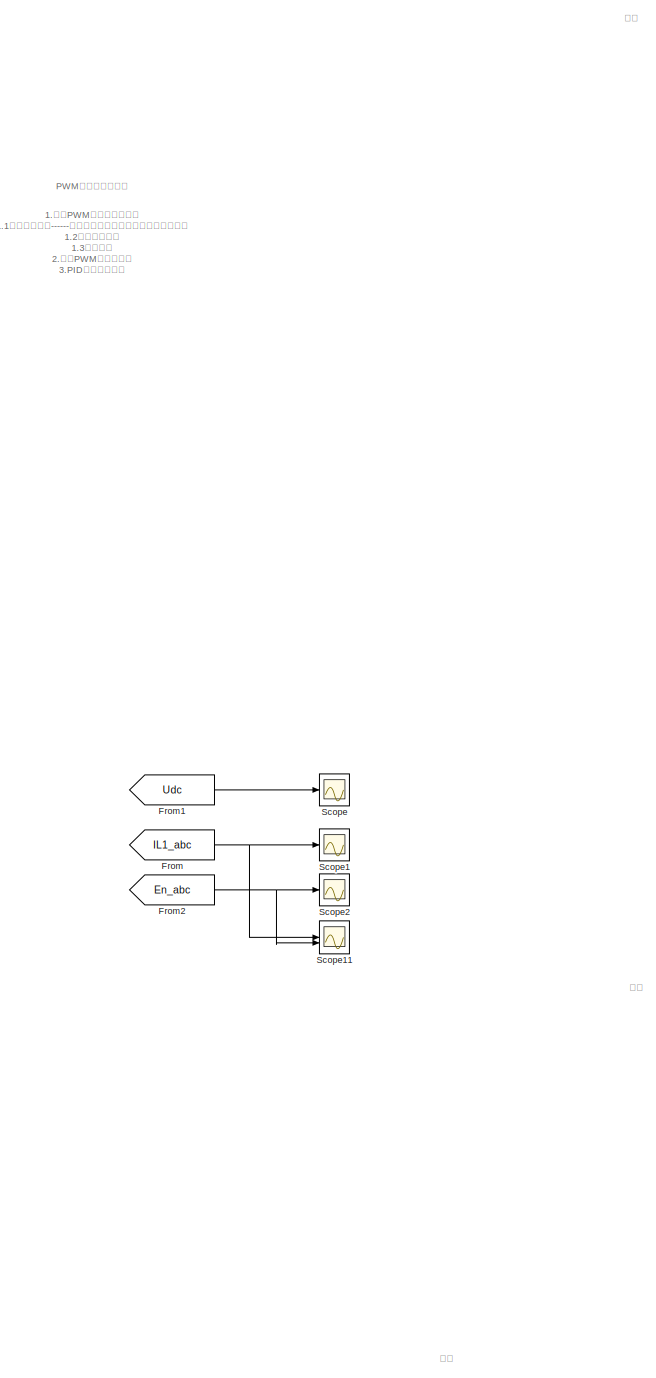
[diagram: root canvas - part 1/9, top left region]
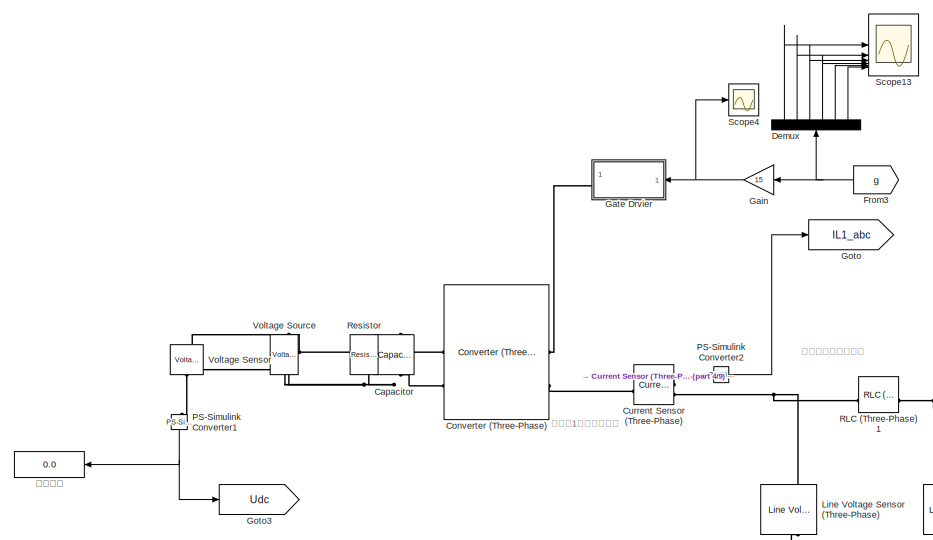
[diagram: root canvas - part 2/9, top center region]
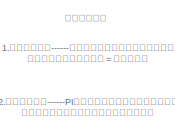
[diagram: root canvas - part 3/9, top right region]
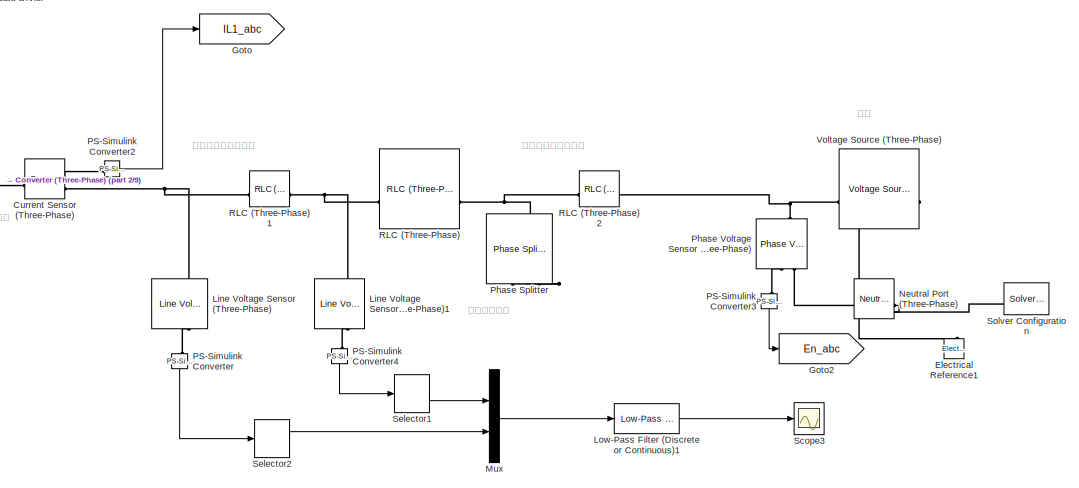
[diagram: root canvas - part 4/9, top center region]
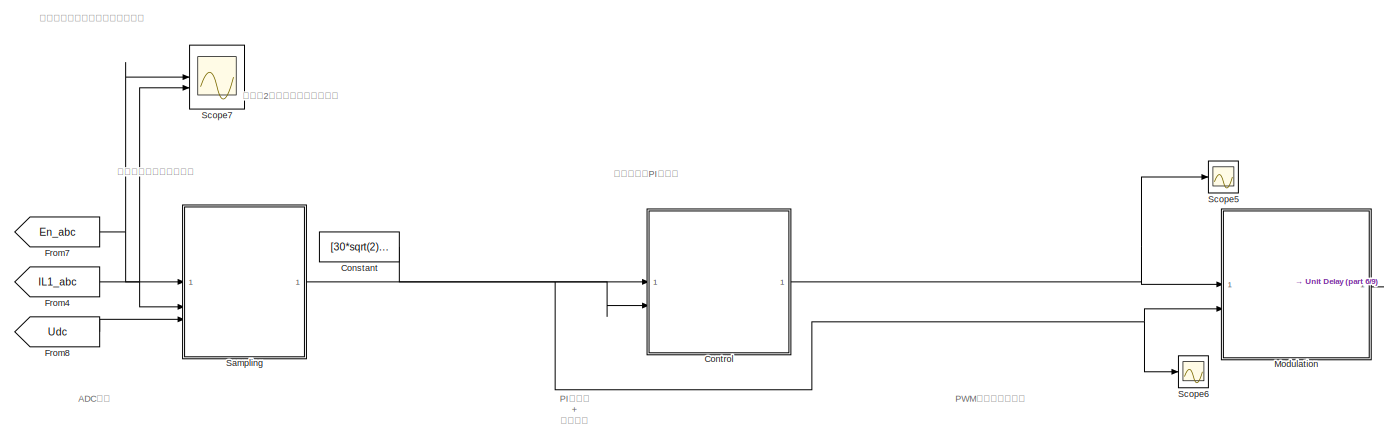
[diagram: root canvas - part 5/9, central region]
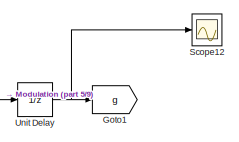
[diagram: root canvas - part 6/9, middle right region]
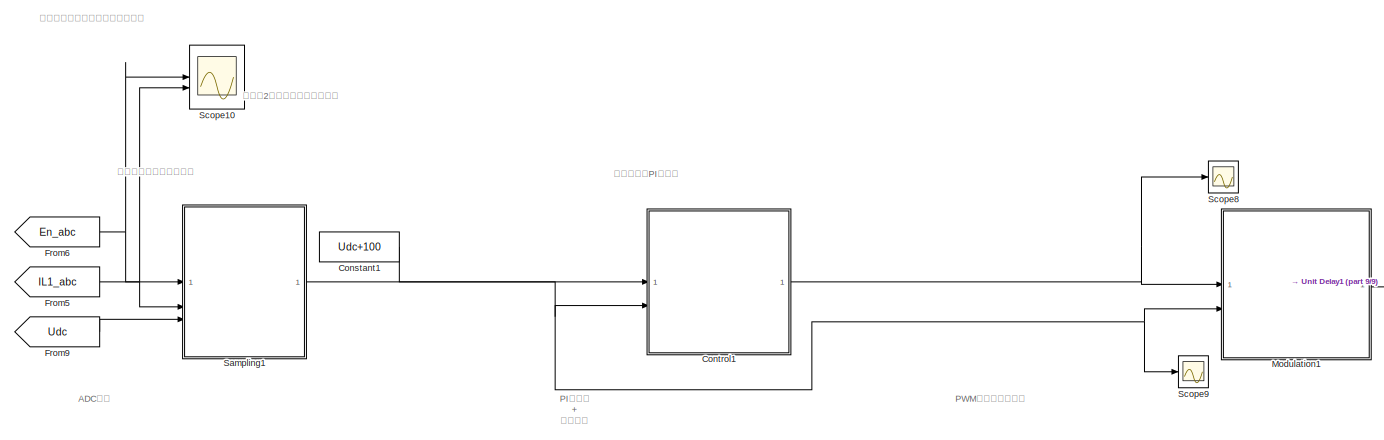
[diagram: root canvas - part 7/9, bottom center region]
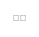
[diagram: root canvas - part 8/9, bottom left region]
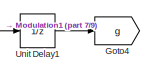
[diagram: root canvas - part 9/9, bottom right region]
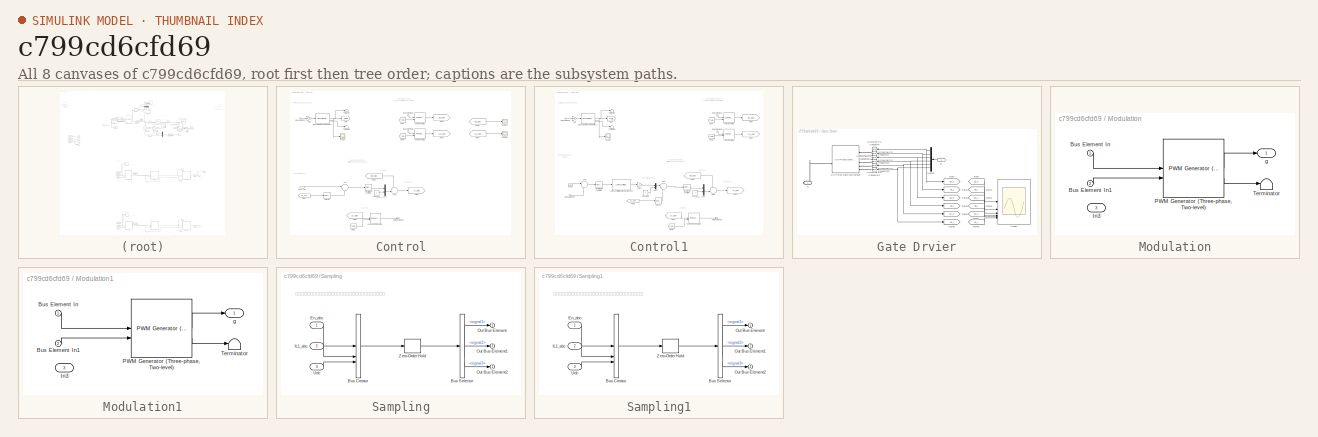
[diagram: thumbnail index - all 8 canvases of the model, root first then tree order]
MODEL slx_c799cd6cfd69
KIND model
CONFIG AbsTol = 1e-3
CONFIG EnableMultiTasking = off
CONFIG FixedStep = SampleTime
CONFIG InitFcn = SampleTime = 1e-6;\n\nPn = 20e3;\nEn = 400;\nUdc = 800;\nf0 = 50;\n\nL1 = 2e-3;\nCdc = 2000e-6;\nRdc = 32;\nfsw = 10e3;\nTc = 1/fsw;\n\nCurr_Kp = 4.43612657703582;\nCurr_Ki = 2045.91501898325;\n\nVolt_Kp = 2.1671;\nVolt_Ki = 164.2462;
CONFIG MaxStep = auto
CONFIG MinStep = auto
CONFIG RelTol = 1e-3
CONFIG SampleTimeConstraint = Unconstrained
CONFIG SolverName = FixedStepDiscrete
CONFIG StartTime = 0.0
CONFIG StopTime = 0.1
BLOCK [Reference] Capacitor  REF=fl_lib/Electrical/Electrical Elements/Capacitor
  NameLocation = left
  SourceBlock = fl_lib/Electrical/Electrical Elements/Capacitor
  SourceType = Capacitor
BLOCK [Constant] Constant
  Value = [30*sqrt(2),0]
BLOCK [Constant] Constant1
  Commented = on
  Value = Udc+100
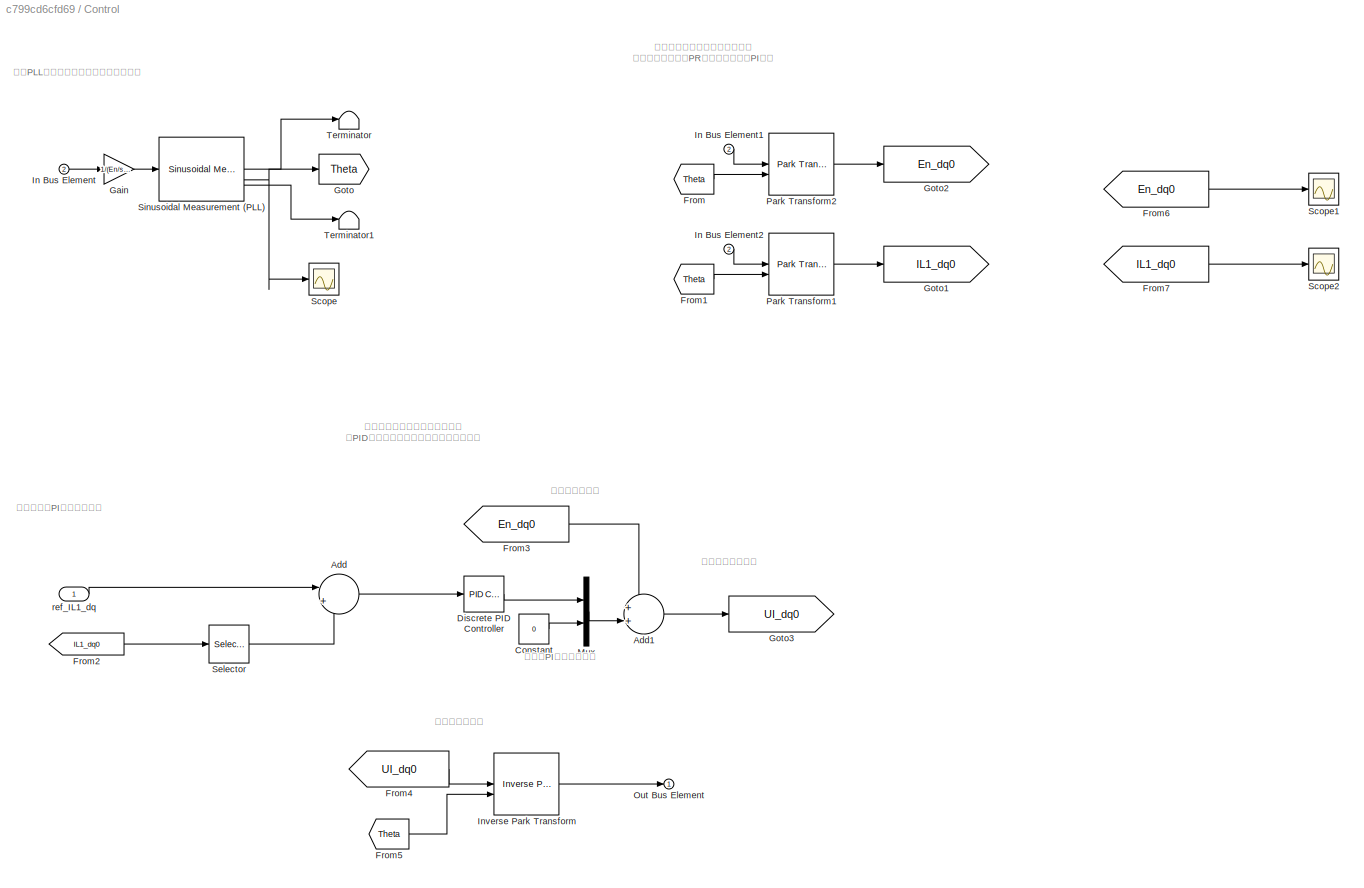
BLOCK [SubSystem] Control
BLOCK [Sum] Control/Add
  Inputs = |+-
BLOCK [Sum] Control/Add1
  Inputs = ++|
BLOCK [Constant] Control/Constant
  Value = 0
BLOCK [Reference] Control/Discrete PID Controller  REF=slpidlib/PID Controller
  LibrarySourceBlock = simulink/Discrete/Discrete PID Controller
  SourceBlock = slpidlib/PID Controller
  SourceType = PID 1dof
BLOCK [From] Control/From
  GotoTag = Theta
BLOCK [From] Control/From1
  GotoTag = Theta
BLOCK [From] Control/From2
  GotoTag = IL1_dq0
  NameLocation = top
BLOCK [From] Control/From3
  GotoTag = En_dq0
  NameLocation = top
BLOCK [From] Control/From4
  GotoTag = UI_dq0
BLOCK [From] Control/From5
  GotoTag = Theta
BLOCK [From] Control/From6
  GotoTag = En_dq0
BLOCK [From] Control/From7
  GotoTag = IL1_dq0
BLOCK [Gain] Control/Gain
  Gain = 1/(En/sqrt(3)*sqrt(2))
BLOCK [Goto] Control/Goto
  GotoTag = Theta
BLOCK [Goto] Control/Goto1
  GotoTag = IL1_dq0
BLOCK [Goto] Control/Goto2
  GotoTag = En_dq0
BLOCK [Goto] Control/Goto3
  GotoTag = UI_dq0
BLOCK [Inport] Control/In Bus Element
  Port = 2
BLOCK [Inport] Control/In Bus Element1
  Port = 2
BLOCK [Inport] Control/In Bus Element2
  Port = 2
BLOCK [Reference] Control/Inverse Park Transform  REF=eeTransforms/Inverse
Park Transform
  LibrarySourceBlock = ee_sl_lib/Mathematical\nTransforms/Inverse\nPark Transform
  SourceBlock = eeTransforms/Inverse\nPark Transform
  SourceType = Inverse Park Transform
BLOCK [Mux] Control/Mux
  DisplayOption = bar
  Inputs = 2
BLOCK [Outport] Control/Out Bus Element
BLOCK [Reference] Control/Park Transform1  REF=eeTransforms/Park Transform
  LibrarySourceBlock = ee_sl_lib/Mathematical\nTransforms/Park Transform
  SourceBlock = eeTransforms/Park Transform
  SourceType = Park Transform
BLOCK [Reference] Control/Park Transform2  REF=eeTransforms/Park Transform
  LibrarySourceBlock = ee_sl_lib/Mathematical\nTransforms/Park Transform
  SourceBlock = eeTransforms/Park Transform
  SourceType = Park Transform
BLOCK [Scope] Control/Scope
  Floating = off
  NumInputPorts = 1
  ScopeSpecificationString = Simulink.scopes.TimeScopeBlockCfg('CurrentConfiguration', extmgr.ConfigurationSet(extmgr.Configuration('Core','General UI',true),extmgr.Configuration('Core','Source UI',true),extmgr.Configuration('Sources','WiredSimulink',true,'DataLoggingVariableName','ScopeData5'),extmgr.Configuration('Visuals','Time Domain',true,'SerializedDisplays',{struct('MinYLimReal','-0.7854','MaxYLimReal','7.06858','YLabe...<+1514ch>
BLOCK [Scope] Control/Scope1
  Floating = off
  NumInputPorts = 1
  ScopeSpecificationString = Simulink.scopes.TimeScopeBlockCfg('CurrentConfiguration', extmgr.ConfigurationSet(extmgr.Configuration('Core','General UI',true),extmgr.Configuration('Core','Source UI',true),extmgr.Configuration('Sources','WiredSimulink',true,'DataLoggingVariableName','ScopeData14'),extmgr.Configuration('Visuals','Time Domain',true,'SerializedDisplays',{struct('MinYLimReal','-40.82483','MaxYLimReal','367.42346','...<+1482ch>
BLOCK [Scope] Control/Scope2
  Floating = off
  NumInputPorts = 1
  ScopeSpecificationString = Simulink.scopes.TimeScopeBlockCfg('CurrentConfiguration', extmgr.ConfigurationSet(extmgr.Configuration('Core','General UI',true),extmgr.Configuration('Core','Source UI',true),extmgr.Configuration('Sources','WiredSimulink',true,'DataLoggingVariableName','ScopeData15'),extmgr.Configuration('Visuals','Time Domain',true,'SerializedDisplays',{struct('MinYLimReal','-31.66382','MaxYLimReal','53.01915','Y...<+1478ch>
BLOCK [Selector] Control/Selector
  IndexOptions = Index vector (dialog)
  Indices = [1 2]
  InputPortWidth = 3
  OutputSizes = 1
BLOCK [Reference] Control/Sinusoidal Measurement (PLL)  REF=eeSinusoidalMeasurementV2/Sinusoidal Measurement
(PLL)
  LibrarySourceBlock = ee_sl_lib/Measurements/Sinusoidal Measurement\n(PLL)
  SourceBlock = eeSinusoidalMeasurementV2/Sinusoidal Measurement\n(PLL)
  SourceType = Sinusoidal Measurement (PLL)
BLOCK [Terminator] Control/Terminator
BLOCK [Terminator] Control/Terminator1
BLOCK [Inport] Control/ref_IL1_dq
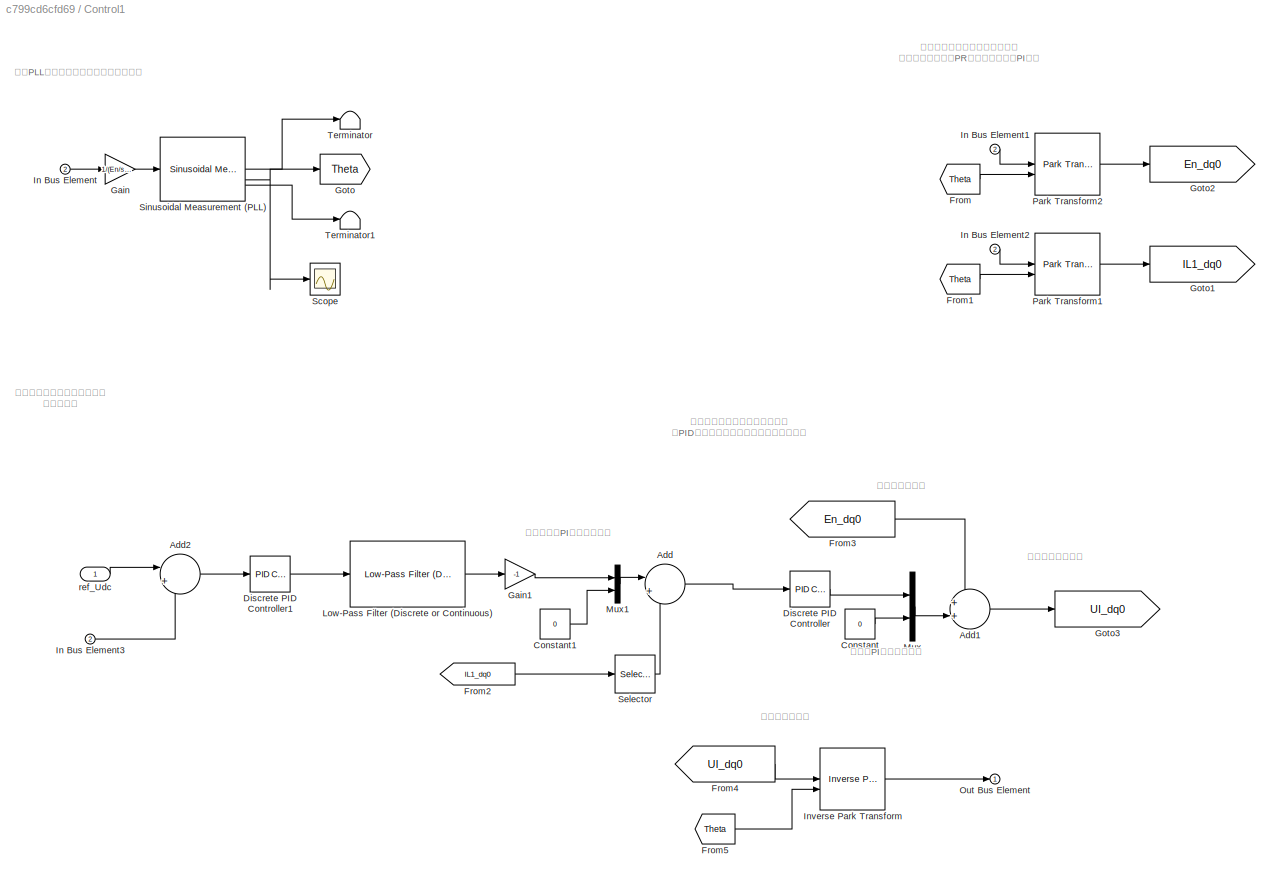
BLOCK [SubSystem] Control1
  Commented = on
BLOCK [Sum] Control1/Add
  Inputs = |+-
BLOCK [Sum] Control1/Add1
  Inputs = ++|
BLOCK [Sum] Control1/Add2
  Inputs = |+-
BLOCK [Constant] Control1/Constant
  Value = 0
BLOCK [Constant] Control1/Constant1
  Value = 0
BLOCK [Reference] Control1/Discrete PID Controller  REF=slpidlib/PID Controller
  LibrarySourceBlock = simulink/Discrete/Discrete PID Controller
  SourceBlock = slpidlib/PID Controller
  SourceType = PID 1dof
BLOCK [Reference] Control1/Discrete PID Controller1  REF=slpidlib/PID Controller
  LibrarySourceBlock = simulink/Discrete/Discrete PID Controller
  SourceBlock = slpidlib/PID Controller
  SourceType = PID 1dof
BLOCK [From] Control1/From
  GotoTag = Theta
BLOCK [From] Control1/From1
  GotoTag = Theta
BLOCK [From] Control1/From2
  GotoTag = IL1_dq0
  NameLocation = top
BLOCK [From] Control1/From3
  GotoTag = En_dq0
  NameLocation = top
BLOCK [From] Control1/From4
  GotoTag = UI_dq0
BLOCK [From] Control1/From5
  GotoTag = Theta
BLOCK [Gain] Control1/Gain
  Gain = 1/(En/sqrt(3)*sqrt(2))
BLOCK [Gain] Control1/Gain1
  Gain = -1
BLOCK [Goto] Control1/Goto
  GotoTag = Theta
BLOCK [Goto] Control1/Goto1
  GotoTag = IL1_dq0
BLOCK [Goto] Control1/Goto2
  GotoTag = En_dq0
BLOCK [Goto] Control1/Goto3
  GotoTag = UI_dq0
BLOCK [Inport] Control1/In Bus Element
  Port = 2
BLOCK [Inport] Control1/In Bus Element1
  Port = 2
BLOCK [Inport] Control1/In Bus Element2
  Port = 2
BLOCK [Inport] Control1/In Bus Element3
  Port = 2
BLOCK [Reference] Control1/Inverse Park Transform  REF=eeTransforms/Inverse
Park Transform
  LibrarySourceBlock = ee_sl_lib/Mathematical\nTransforms/Inverse\nPark Transform
  SourceBlock = eeTransforms/Inverse\nPark Transform
  SourceType = Inverse Park Transform
BLOCK [Reference] Control1/Low-Pass Filter (Discrete or Continuous)  REF=eeGeneralControl/Low-Pass Filter
(Discrete or Continuous)
  LibrarySourceBlock = ee_sl_lib/General Control/Low-Pass Filter\n(Discrete or Continuous)
  SourceBlock = eeGeneralControl/Low-Pass Filter\n(Discrete or Continuous)
  SourceType = Low-Pass Filter (Discrete or Continuous)
BLOCK [Mux] Control1/Mux
  DisplayOption = bar
  Inputs = 2
BLOCK [Mux] Control1/Mux1
  DisplayOption = bar
  Inputs = 2
BLOCK [Outport] Control1/Out Bus Element
BLOCK [Reference] Control1/Park Transform1  REF=eeTransforms/Park Transform
  LibrarySourceBlock = ee_sl_lib/Mathematical\nTransforms/Park Transform
  SourceBlock = eeTransforms/Park Transform
  SourceType = Park Transform
BLOCK [Reference] Control1/Park Transform2  REF=eeTransforms/Park Transform
  LibrarySourceBlock = ee_sl_lib/Mathematical\nTransforms/Park Transform
  SourceBlock = eeTransforms/Park Transform
  SourceType = Park Transform
BLOCK [Scope] Control1/Scope
  Floating = off
  NumInputPorts = 1
  ScopeSpecificationString = Simulink.scopes.TimeScopeBlockCfg('CurrentConfiguration', extmgr.ConfigurationSet(extmgr.Configuration('Core','General UI',true),extmgr.Configuration('Core','Source UI',true),extmgr.Configuration('Sources','WiredSimulink',true,'DataLoggingVariableName','ScopeData5'),extmgr.Configuration('Visuals','Time Domain',true,'SerializedDisplays',{struct('MinYLimReal','-0.7854','MaxYLimReal','7.06858','YLabe...<+1514ch>
BLOCK [Selector] Control1/Selector
  IndexOptions = Index vector (dialog)
  Indices = [1 2]
  InputPortWidth = 3
  OutputSizes = 1
BLOCK [Reference] Control1/Sinusoidal Measurement (PLL)  REF=eeSinusoidalMeasurementV2/Sinusoidal Measurement
(PLL)
  LibrarySourceBlock = ee_sl_lib/Measurements/Sinusoidal Measurement\n(PLL)
  SourceBlock = eeSinusoidalMeasurementV2/Sinusoidal Measurement\n(PLL)
  SourceType = Sinusoidal Measurement (PLL)
BLOCK [Terminator] Control1/Terminator
BLOCK [Terminator] Control1/Terminator1
BLOCK [Inport] Control1/ref_Udc
BLOCK [Reference] Converter (Three-Phase)  REF=ee_lib/Semiconductors &
Converters/Converters/Converter
(Three-Phase)
  SourceBlock = ee_lib/Semiconductors &\nConverters/Converters/Converter\n(Three-Phase)
  SourceType = Converter\n(Three-Phase)
BLOCK [Reference] Current Sensor (Three-Phase)  REF=ee_lib/Sensors &
Transducers/Current Sensor
(Three-Phase)
  SourceBlock = ee_lib/Sensors &\nTransducers/Current Sensor\n(Three-Phase)
  SourceType = Current Sensor\n(Three-Phase)
BLOCK [Demux] Demux
  NameLocation = right
  Outputs = 6
BLOCK [Reference] Electrical Reference1  REF=fl_lib/Electrical/Electrical Elements/Electrical Reference
  LibrarySourceBlock = ee_lib/Connectors &\nReferences/Electrical Reference
  NameLocation = right
  SourceBlock = fl_lib/Electrical/Electrical Elements/Electrical Reference
  SourceType = Electrical Reference
BLOCK [From] From
  GotoTag = IL1_abc
BLOCK [From] From1
  GotoTag = Udc
BLOCK [From] From2
  GotoTag = En_abc
BLOCK [From] From3
  GotoTag = g
  NameLocation = top
BLOCK [From] From4
  GotoTag = IL1_abc
BLOCK [From] From5
  Commented = on
  GotoTag = IL1_abc
BLOCK [From] From6
  Commented = on
  GotoTag = En_abc
BLOCK [From] From7
  GotoTag = En_abc
BLOCK [From] From8
  GotoTag = Udc
BLOCK [From] From9
  Commented = on
  GotoTag = Udc
BLOCK [Gain] Gain
  Gain = 15
  NameLocation = top
BLOCK [SubSystem] Gate Drvier
  NameLocation = top
BLOCK [Demux] Gate Drvier/Demux
  NameLocation = top
  Outputs = 6
BLOCK [From] Gate Drvier/From
  GotoTag = Ga_H
BLOCK [From] Gate Drvier/From1
  GotoTag = Ga_L
BLOCK [From] Gate Drvier/From2
  GotoTag = Gb_H
BLOCK [From] Gate Drvier/From3
  GotoTag = Gb_L
BLOCK [From] Gate Drvier/From4
  GotoTag = Gc_H
BLOCK [From] Gate Drvier/From5
  GotoTag = Gc_L
BLOCK [PMIOPort] Gate Drvier/G
  Side = Right
BLOCK [Goto] Gate Drvier/Goto
  GotoTag = Ga_H
BLOCK [Goto] Gate Drvier/Goto1
  GotoTag = Ga_L
BLOCK [Goto] Gate Drvier/Goto2
  GotoTag = Gb_H
BLOCK [Goto] Gate Drvier/Goto3
  GotoTag = Gb_L
BLOCK [Goto] Gate Drvier/Goto4
  GotoTag = Gc_H
BLOCK [Goto] Gate Drvier/Goto5
  GotoTag = Gc_L
BLOCK [Scope] Gate Drvier/Scope
  Floating = off
  NumInputPorts = 6
  ScopeSpecificationString = Simulink.scopes.TimeScopeBlockCfg('CurrentConfiguration', extmgr.ConfigurationSet(extmgr.Configuration('Core','General UI',true),extmgr.Configuration('Core','Source UI',true),extmgr.Configuration('Sources','WiredSimulink',true,'DataLoggingVariableName','ScopeData13'),extmgr.Configuration('Visuals','Time Domain',true,'SerializedDisplays',{struct('MinYLimReal','-1.875','MaxYLimReal','16.875','YLabel...<+4968ch>
BLOCK [Reference] Gate Drvier/Simulink-PS Converter  REF=nesl_utility/Simulink-PS
Converter
  NameLocation = top
  SourceBlock = nesl_utility/Simulink-PS\nConverter
  SourceType = Simulink-PS\nConverter
BLOCK [Reference] Gate Drvier/Simulink-PS Converter1  REF=nesl_utility/Simulink-PS
Converter
  NameLocation = top
  SourceBlock = nesl_utility/Simulink-PS\nConverter
  SourceType = Simulink-PS\nConverter
BLOCK [Reference] Gate Drvier/Simulink-PS Converter2  REF=nesl_utility/Simulink-PS
Converter
  NameLocation = top
  SourceBlock = nesl_utility/Simulink-PS\nConverter
  SourceType = Simulink-PS\nConverter
BLOCK [Reference] Gate Drvier/Simulink-PS Converter3  REF=nesl_utility/Simulink-PS
Converter
  NameLocation = top
  SourceBlock = nesl_utility/Simulink-PS\nConverter
  SourceType = Simulink-PS\nConverter
BLOCK [Reference] Gate Drvier/Simulink-PS Converter4  REF=nesl_utility/Simulink-PS
Converter
  NameLocation = top
  SourceBlock = nesl_utility/Simulink-PS\nConverter
  SourceType = Simulink-PS\nConverter
BLOCK [Reference] Gate Drvier/Simulink-PS Converter5  REF=nesl_utility/Simulink-PS
Converter
  NameLocation = top
  SourceBlock = nesl_utility/Simulink-PS\nConverter
  SourceType = Simulink-PS\nConverter
BLOCK [Reference] Gate Drvier/Six-Pulse Gate Multiplexer  REF=ee_lib/Semiconductors &
Converters/Converters/Six-Pulse Gate
Multiplexer
  NameLocation = top
  SourceBlock = ee_lib/Semiconductors &\nConverters/Converters/Six-Pulse Gate\nMultiplexer
  SourceType = Six-Pulse Gate\nMultiplexer
BLOCK [Inport] Gate Drvier/g
BLOCK [Goto] Goto
  GotoTag = IL1_abc
BLOCK [Goto] Goto1
  GotoTag = g
  NameLocation = top
BLOCK [Goto] Goto2
  GotoTag = En_abc
BLOCK [Goto] Goto3
  GotoTag = Udc
BLOCK [Goto] Goto4
  Commented = on
  GotoTag = g
  NameLocation = top
BLOCK [Reference] Line Voltage Sensor (Three-Phase)  REF=ee_lib/Sensors &
Transducers/Line Voltage Sensor
(Three-Phase)
  Commented = on
  NameLocation = right
  SourceBlock = ee_lib/Sensors &\nTransducers/Line Voltage Sensor\n(Three-Phase)
  SourceType = Line Voltage Sensor\n(Three-Phase)
BLOCK [Reference] Line Voltage Sensor (Three-Phase)1  REF=ee_lib/Sensors &
Transducers/Line Voltage Sensor
(Three-Phase)
  Commented = on
  NameLocation = right
  SourceBlock = ee_lib/Sensors &\nTransducers/Line Voltage Sensor\n(Three-Phase)
  SourceType = Line Voltage Sensor\n(Three-Phase)
BLOCK [Reference] Low-Pass Filter (Discrete or Continuous)1  REF=eeGeneralControl/Low-Pass Filter
(Discrete or Continuous)
  Commented = on
  LibrarySourceBlock = ee_sl_lib/General Control/Low-Pass Filter\n(Discrete or Continuous)
  SourceBlock = eeGeneralControl/Low-Pass Filter\n(Discrete or Continuous)
  SourceType = Low-Pass Filter (Discrete or Continuous)
BLOCK [SubSystem] Modulation
  PortSchema = {"entries":[{"content":{"sides":[{"content":{"connectorIds":["In1","In2"]},"type":"ConnectorPlacement.EquallySpacedRectSide","uuid":"6f2b4e45-07a4-4b9a-b264-e657ed3e3d49"},{"content":{"connectorIds":["Out1"],"side":"RIGHT"},"type":"ConnectorPlacement.EquallySpacedRectSide","uuid":"fc619c4c-e947-4a72-af3b-717aea721804"},{"content":{"connectorIds":["In3"],"side":"TOP"},"type":"ConnectorPlacement.Equ...<+251ch>
BLOCK [Inport] Modulation/Bus Element In
BLOCK [Inport] Modulation/Bus Element In1
  Port = 2
BLOCK [Inport] Modulation/In3
  Port = 3
BLOCK [Reference] Modulation/PWM Generator (Three-phase, Two-level)  REF=eePwmGeneratorTwoLevel/PWM Generator
(Three-phase, Two-level)
  LibrarySourceBlock = ee_sl_lib/Pulse Width\nModulation/PWM Generator\n(Three-phase, Two-level)
  SourceBlock = eePwmGeneratorTwoLevel/PWM Generator\n(Three-phase, Two-level)
  SourceType = PWM Generator (three-phase, two-level)
BLOCK [Terminator] Modulation/Terminator
BLOCK [Outport] Modulation/g
BLOCK [SubSystem] Modulation1
  Commented = on
  PortSchema = {"entries":[{"content":{"sides":[{"content":{"connectorIds":["In1","In2"]},"type":"ConnectorPlacement.EquallySpacedRectSide","uuid":"6f2b4e45-07a4-4b9a-b264-e657ed3e3d49"},{"content":{"connectorIds":["Out1"],"side":"RIGHT"},"type":"ConnectorPlacement.EquallySpacedRectSide","uuid":"fc619c4c-e947-4a72-af3b-717aea721804"},{"content":{"connectorIds":["In3"],"side":"TOP"},"type":"ConnectorPlacement.Equ...<+251ch>
BLOCK [Inport] Modulation1/Bus Element In
BLOCK [Inport] Modulation1/Bus Element In1
  Port = 2
BLOCK [Inport] Modulation1/In3
  Port = 3
BLOCK [Reference] Modulation1/PWM Generator (Three-phase, Two-level)  REF=eePwmGeneratorTwoLevel/PWM Generator
(Three-phase, Two-level)
  LibrarySourceBlock = ee_sl_lib/Pulse Width\nModulation/PWM Generator\n(Three-phase, Two-level)
  SourceBlock = eePwmGeneratorTwoLevel/PWM Generator\n(Three-phase, Two-level)
  SourceType = PWM Generator (three-phase, two-level)
BLOCK [Terminator] Modulation1/Terminator
BLOCK [Outport] Modulation1/g
BLOCK [Mux] Mux
  Commented = on
  DisplayOption = bar
  Inputs = 2
BLOCK [Reference] Neutral Port (Three-Phase)  REF=ee_lib/Connectors &
References/Neutral Port
(Three-Phase)
  NameLocation = top
  SourceBlock = ee_lib/Connectors &\nReferences/Neutral Port\n(Three-Phase)
  SourceType = Neutral Port\n(Three-Phase)
BLOCK [Reference] PS-Simulink Converter  REF=nesl_utility/PS-Simulink
Converter
  Commented = on
  NameLocation = left
  SourceBlock = nesl_utility/PS-Simulink\nConverter
  SourceType = PS-Simulink\nConverter
BLOCK [Reference] PS-Simulink Converter1  REF=nesl_utility/PS-Simulink
Converter
  NameLocation = left
  SourceBlock = nesl_utility/PS-Simulink\nConverter
  SourceType = PS-Simulink\nConverter
BLOCK [Reference] PS-Simulink Converter2  REF=nesl_utility/PS-Simulink
Converter
  SourceBlock = nesl_utility/PS-Simulink\nConverter
  SourceType = PS-Simulink\nConverter
BLOCK [Reference] PS-Simulink Converter3  REF=nesl_utility/PS-Simulink
Converter
  NameLocation = left
  SourceBlock = nesl_utility/PS-Simulink\nConverter
  SourceType = PS-Simulink\nConverter
BLOCK [Reference] PS-Simulink Converter4  REF=nesl_utility/PS-Simulink
Converter
  Commented = on
  NameLocation = left
  SourceBlock = nesl_utility/PS-Simulink\nConverter
  SourceType = PS-Simulink\nConverter
BLOCK [Reference] Phase Splitter  REF=ee_lib/Connectors &
References/Phase Splitter
  Commented = on
  NameLocation = left
  SourceBlock = ee_lib/Connectors &\nReferences/Phase Splitter
  SourceType = Phase Splitter
BLOCK [Reference] Phase Voltage Sensor (Three-Phase)  REF=ee_lib/Sensors &
Transducers/Phase Voltage Sensor
(Three-Phase)
  NameLocation = right
  SourceBlock = ee_lib/Sensors &\nTransducers/Phase Voltage Sensor\n(Three-Phase)
  SourceType = Phase Voltage Sensor\n(Three-Phase)
BLOCK [Reference] RLC (Three-Phase)  REF=ee_lib/Passive/RLC Assemblies/RLC (Three-Phase)
  SourceBlock = ee_lib/Passive/RLC Assemblies/RLC (Three-Phase)
  SourceType = RLC (Three-Phase)
BLOCK [Reference] RLC (Three-Phase)1  REF=ee_lib/Passive/RLC Assemblies/RLC (Three-Phase)
  Commented = through
  SourceBlock = ee_lib/Passive/RLC Assemblies/RLC (Three-Phase)
  SourceType = RLC (Three-Phase)
BLOCK [Reference] RLC (Three-Phase)2  REF=ee_lib/Passive/RLC Assemblies/RLC (Three-Phase)
  Commented = through
  SourceBlock = ee_lib/Passive/RLC Assemblies/RLC (Three-Phase)
  SourceType = RLC (Three-Phase)
BLOCK [Reference] Resistor  REF=fl_lib/Electrical/Electrical Elements/Resistor
  NameLocation = left
  SourceBlock = fl_lib/Electrical/Electrical Elements/Resistor
  SourceType = Resistor
BLOCK [SubSystem] Sampling
BLOCK [BusCreator] Sampling/Bus Creator
  DisplayOption = bar
  InheritFromInputs = on
  Inputs = 3
BLOCK [BusSelector] Sampling/Bus Selector
  OutputSignals = signal1,signal2,signal3
BLOCK [Inport] Sampling/En_abc
BLOCK [Inport] Sampling/IL1_abc
  Port = 2
BLOCK [Outport] Sampling/Out Bus Element
BLOCK [Outport] Sampling/Out Bus Element1
BLOCK [Outport] Sampling/Out Bus Element2
BLOCK [Inport] Sampling/Udc
  Port = 3
BLOCK [ZeroOrderHold] Sampling/Zero-Order Hold
  SampleTime = Tc
BLOCK [SubSystem] Sampling1
  Commented = on
BLOCK [BusCreator] Sampling1/Bus Creator
  DisplayOption = bar
  InheritFromInputs = on
  Inputs = 3
BLOCK [BusSelector] Sampling1/Bus Selector
  OutputSignals = signal1,signal2,signal3
BLOCK [Inport] Sampling1/En_abc
BLOCK [Inport] Sampling1/IL1_abc
  Port = 2
BLOCK [Outport] Sampling1/Out Bus Element
BLOCK [Outport] Sampling1/Out Bus Element1
BLOCK [Outport] Sampling1/Out Bus Element2
BLOCK [Inport] Sampling1/Udc
  Port = 3
BLOCK [ZeroOrderHold] Sampling1/Zero-Order Hold
  SampleTime = Tc
BLOCK [Scope] Scope
  Floating = off
  NumInputPorts = 1
  ScopeSpecificationString = Simulink.scopes.TimeScopeBlockCfg('CurrentConfiguration', extmgr.ConfigurationSet(extmgr.Configuration('Core','General UI',true),extmgr.Configuration('Core','Source UI',true),extmgr.Configuration('Sources','WiredSimulink',true),extmgr.Configuration('Visuals','Time Domain',true,'SerializedDisplays',{struct('MinYLimReal','700.00000','MaxYLimReal','900.00000','YLabelReal','','MinYLimMag','700.00000',...<+1449ch>
BLOCK [Scope] Scope1
  Floating = off
  NumInputPorts = 1
  ScopeSpecificationString = Simulink.scopes.TimeScopeBlockCfg('CurrentConfiguration', extmgr.ConfigurationSet(extmgr.Configuration('Core','General UI',true),extmgr.Configuration('Core','Source UI',true),extmgr.Configuration('Sources','WiredSimulink',true,'DataLoggingVariableName','ScopeData1'),extmgr.Configuration('Visuals','Time Domain',true,'SerializedDisplays',{struct('MinYLimReal','-56.5347','MaxYLimReal','57.02068','YLa...<+1509ch>
BLOCK [Scope] Scope10
  Commented = on
  Floating = off
  NumInputPorts = 2
  ScopeSpecificationString = Simulink.scopes.TimeScopeBlockCfg('CurrentConfiguration', extmgr.ConfigurationSet(extmgr.Configuration('Core','General UI',true),extmgr.Configuration('Core','Source UI',true),extmgr.Configuration('Sources','WiredSimulink',true,'DataLoggingVariableName','ScopeData7'),extmgr.Configuration('Visuals','Time Domain',true,'SerializedDisplays',{struct('MinYLimReal','-408.24829','MaxYLimReal','408.24829','...<+2233ch>
BLOCK [Scope] Scope11
  Floating = off
  NumInputPorts = 2
  ScopeSpecificationString = Simulink.scopes.TimeScopeBlockCfg('CurrentConfiguration', extmgr.ConfigurationSet(extmgr.Configuration('Core','General UI',true),extmgr.Configuration('Core','Source UI',true),extmgr.Configuration('Sources','WiredSimulink',true,'DataLoggingVariableName','ScopeData10'),extmgr.Configuration('Visuals','Time Domain',true,'SerializedDisplays',{struct('MinYLimReal','-56.5347','MaxYLimReal','57.02068','YL...<+2230ch>
BLOCK [Scope] Scope12
  Floating = off
  NumInputPorts = 1
  ScopeSpecificationString = Simulink.scopes.TimeScopeBlockCfg('CurrentConfiguration', extmgr.ConfigurationSet(extmgr.Configuration('Core','General UI',true),extmgr.Configuration('Core','Source UI',true),extmgr.Configuration('Sources','WiredSimulink',true,'DataLoggingVariableName','ScopeData11'),extmgr.Configuration('Visuals','Time Domain',true,'SerializedDisplays',{struct('MinYLimReal','0.53565','MaxYLimReal','0.68366','YLab...<+1544ch>
BLOCK [Scope] Scope13
  Floating = off
  NumInputPorts = 6
  ScopeSpecificationString = Simulink.scopes.TimeScopeBlockCfg('CurrentConfiguration', extmgr.ConfigurationSet(extmgr.Configuration('Core','General UI',true),extmgr.Configuration('Core','Source UI',true),extmgr.Configuration('Sources','WiredSimulink',true,'DataLoggingVariableName','ScopeData12'),extmgr.Configuration('Visuals','Time Domain',true,'SerializedDisplays',{struct('MinYLimReal','-0.125','MaxYLimReal','1.125','YLabelR...<+4972ch>
BLOCK [Scope] Scope2
  Floating = off
  NumInputPorts = 1
  ScopeSpecificationString = Simulink.scopes.TimeScopeBlockCfg('CurrentConfiguration', extmgr.ConfigurationSet(extmgr.Configuration('Core','General UI',true),extmgr.Configuration('Core','Source UI',true),extmgr.Configuration('Sources','WiredSimulink',true,'DataLoggingVariableName','ScopeData2'),extmgr.Configuration('Visuals','Time Domain',true,'SerializedDisplays',{struct('MinYLimReal','-408.24829','MaxYLimReal','408.24829','...<+1506ch>
BLOCK [Scope] Scope3
  Commented = on
  Floating = off
  NumInputPorts = 1
  ScopeSpecificationString = Simulink.scopes.TimeScopeBlockCfg('CurrentConfiguration', extmgr.ConfigurationSet(extmgr.Configuration('Core','General UI',true),extmgr.Configuration('Core','Source UI',true),extmgr.Configuration('Sources','WiredSimulink',true,'DataLoggingVariableName','ScopeData1'),extmgr.Configuration('Visuals','Time Domain',true,'SerializedDisplays',{struct('MinYLimReal','-707.10678','MaxYLimReal','707.10678','...<+1612ch>
BLOCK [Scope] Scope4
  Floating = off
  NumInputPorts = 1
  ScopeSpecificationString = Simulink.scopes.TimeScopeBlockCfg('CurrentConfiguration', extmgr.ConfigurationSet(extmgr.Configuration('Core','General UI',true),extmgr.Configuration('Core','Source UI',true),extmgr.Configuration('Sources','WiredSimulink',true,'DataLoggingVariableName','ScopeData2'),extmgr.Configuration('Visuals','Time Domain',true,'SerializedDisplays',{struct('MinYLimReal','-1.875','MaxYLimReal','16.875','YLabelR...<+1526ch>
BLOCK [Scope] Scope5
  Floating = off
  NumInputPorts = 1
  ScopeSpecificationString = Simulink.scopes.TimeScopeBlockCfg('CurrentConfiguration', extmgr.ConfigurationSet(extmgr.Configuration('Core','General UI',true),extmgr.Configuration('Core','Source UI',true),extmgr.Configuration('Sources','WiredSimulink',true,'DataLoggingVariableName','ScopeData3'),extmgr.Configuration('Visuals','Time Domain',true,'SerializedDisplays',{struct('MinYLimReal','-707.10678','MaxYLimReal','707.10678','...<+1550ch>
BLOCK [Scope] Scope6
  Floating = off
  NumInputPorts = 1
  ScopeSpecificationString = Simulink.scopes.TimeScopeBlockCfg('CurrentConfiguration', extmgr.ConfigurationSet(extmgr.Configuration('Core','General UI',true),extmgr.Configuration('Core','Source UI',true),extmgr.Configuration('Sources','WiredSimulink',true,'DataLoggingVariableName','ScopeData4'),extmgr.Configuration('Visuals','Time Domain',true,'SerializedDisplays',{struct('MinYLimReal','-408.24829','MaxYLimReal','408.24829','...<+1632ch>
BLOCK [Scope] Scope7
  Floating = off
  NumInputPorts = 2
  ScopeSpecificationString = Simulink.scopes.TimeScopeBlockCfg('CurrentConfiguration', extmgr.ConfigurationSet(extmgr.Configuration('Core','General UI',true),extmgr.Configuration('Core','Source UI',true),extmgr.Configuration('Sources','WiredSimulink',true,'DataLoggingVariableName','ScopeData6'),extmgr.Configuration('Visuals','Time Domain',true,'SerializedDisplays',{struct('MinYLimReal','-408.24829','MaxYLimReal','408.24829','...<+2232ch>
BLOCK [Scope] Scope8
  Commented = on
  Floating = off
  NumInputPorts = 1
  ScopeSpecificationString = Simulink.scopes.TimeScopeBlockCfg('CurrentConfiguration', extmgr.ConfigurationSet(extmgr.Configuration('Core','General UI',true),extmgr.Configuration('Core','Source UI',true),extmgr.Configuration('Sources','WiredSimulink',true,'DataLoggingVariableName','ScopeData8'),extmgr.Configuration('Visuals','Time Domain',true,'SerializedDisplays',{struct('MinYLimReal','-707.10678','MaxYLimReal','707.10678','...<+1550ch>
BLOCK [Scope] Scope9
  Commented = on
  Floating = off
  NumInputPorts = 1
  ScopeSpecificationString = Simulink.scopes.TimeScopeBlockCfg('CurrentConfiguration', extmgr.ConfigurationSet(extmgr.Configuration('Core','General UI',true),extmgr.Configuration('Core','Source UI',true),extmgr.Configuration('Sources','WiredSimulink',true,'DataLoggingVariableName','ScopeData9'),extmgr.Configuration('Visuals','Time Domain',true,'SerializedDisplays',{struct('MinYLimReal','-408.24829','MaxYLimReal','408.24829','...<+1632ch>
BLOCK [Selector] Selector1
  Commented = on
  IndexOptions = Index vector (dialog)
  Indices = [1]
  InputPortWidth = 3
  OutputSizes = 1
BLOCK [Selector] Selector2
  Commented = on
  IndexOptions = Index vector (dialog)
  Indices = [1]
  InputPortWidth = 3
  OutputSizes = 1
BLOCK [Reference] Solver Configuration  REF=nesl_utility/Solver
Configuration
  SourceBlock = nesl_utility/Solver\nConfiguration
  SourceType = Solver\nConfiguration
BLOCK [UnitDelay] Unit Delay
  HasFrameUpgradeWarning = on
  SampleTime = -1
BLOCK [UnitDelay] Unit Delay1
  Commented = on
  HasFrameUpgradeWarning = on
  SampleTime = -1
BLOCK [Reference] Voltage Sensor  REF=fl_lib/Electrical/Electrical Sensors/Voltage Sensor
  NameLocation = right
  SourceBlock = fl_lib/Electrical/Electrical Sensors/Voltage Sensor
  SourceType = Voltage Sensor
BLOCK [Reference] Voltage Source  REF=ee_lib/Sources/Voltage Source
  NameLocation = right
  SourceBlock = ee_lib/Sources/Voltage Source
  SourceType = Voltage Source
BLOCK [Reference] Voltage Source (Three-Phase)  REF=ee_lib/Sources/Voltage
Source
(Three-Phase)
  NameLocation = top
  SourceBlock = ee_lib/Sources/Voltage\nSource\n(Three-Phase)
  SourceType = Voltage\nSource\n(Three-Phase)
BLOCK [Display] 直流电压
  Decimation = 1
  NameLocation = top
ANNOTATION (root): 1.搭建PWM并网逆变并运行 1.1电压开环前馈------抵挡电网电源电压，便于进行电流控制 1.2电流短路控制 1.3并网逆变 2.搭建PWM整流并运行 3.PID参数自动调整
ANNOTATION (root): 测试点1：逆变器输出
ANNOTATION (root): 测试点2：逆变器电流短路控制
ANNOTATION (root): 单元测试思路
ANNOTATION (root): 电网电压与电感电流应该保持同相
ANNOTATION (root): 临界保持器，进行离散化
ANNOTATION (root): 坐标变换与PI控制器
ANNOTATION (root): 电网
ANNOTATION (root): 整流
ANNOTATION (root): 逆变
ANNOTATION (root): ADC采样
ANNOTATION (root): PI控制器 + 坐标变换
ANNOTATION (root): PWM调制部分：执行
ANNOTATION (root): 硬件
ANNOTATION (root): 软件
ANNOTATION (root): 1.测试开环前馈------变压器输出是否可以抵挡电源电压 目标：电源电压幅值相位 = 变压器输出
ANNOTATION (root): 2.测试短路电流------PI控制器能否实现电感电流闭环控制 目标：电感电流与电网电压实现同相位输出
ANNOTATION (root): PWM并网逆变与整流
ANNOTATION (root): 极大电阻，相当断路
ANNOTATION (root): 电流短路控制
ANNOTATION Control: 得到桥臂输出电压
ANNOTATION Control: 电网电压就是前馈的稳态工作点 而PID的输出通过调节电感电流来实现闭环
ANNOTATION Control: 进行反帕克变换
ANNOTATION Control: 利用PLL锁相环找到三相输入信号的相位
ANNOTATION Control: 利用坐标变换，将三相信号解耦 之后便可不再使用PR控制器，而转为PI控制
ANNOTATION Control: 对电流进行PI复合闭环控制
ANNOTATION Control: 前馈：电网电压
ANNOTATION Control: 后馈：PI控制电感电流
ANNOTATION Control1: 得到桥臂输出电压
ANNOTATION Control1: 电网电压就是前馈的稳态工作点 而PID的输出通过调节电感电流来实现闭环
ANNOTATION Control1: 进行反帕克变换
ANNOTATION Control1: 利用PLL锁相环找到三相输入信号的相位
ANNOTATION Control1: 利用坐标变换，将三相信号解耦 之后便可不再使用PR控制器，而转为PI控制
ANNOTATION Control1: 对电流进行PI复合闭环控制
ANNOTATION Control1: 内环带宽一定要宽于外环带宽 一般是三倍
ANNOTATION Control1: 前馈：电网电压
ANNOTATION Control1: 后馈：PI控制电感电流
ANNOTATION Sampling: 将具有连续采样时间的输入信号转换为具有离散采样时间的输出信号
ANNOTATION Sampling1: 将具有连续采样时间的输入信号转换为具有离散采样时间的输出信号
LINE Constant1:1 -> Control1:1
LINE Constant:1 -> Control:1
LINE Control/Add1:1 -> Control/Goto3:1
LINE Control/Add:1 -> Control/Discrete PID Controller:1
LINE Control/Constant:1 -> Control/Mux:2
LINE Control/Discrete PID Controller:1 -> Control/Mux:1
LINE Control/From1:1 -> Control/Park Transform1:2
LINE Control/From2:1 -> Control/Selector:1
LINE Control/From3:1 -> Control/Add1:1
LINE Control/From4:1 -> Control/Inverse Park Transform:1
LINE Control/From5:1 -> Control/Inverse Park Transform:2
LINE Control/From6:1 -> Control/Scope1:1
LINE Control/From7:1 -> Control/Scope2:1
LINE Control/From:1 -> Control/Park Transform2:2
LINE Control/Gain:1 -> Control/Sinusoidal Measurement (PLL):1
LINE Control/In Bus Element1:1 -> Control/Park Transform2:1
LINE Control/In Bus Element2:1 -> Control/Park Transform1:1
LINE Control/In Bus Element:1 -> Control/Gain:1
LINE Control/Inverse Park Transform:1 -> Control/Out Bus Element:1
LINE Control/Mux:1 -> Control/Add1:2
LINE Control/Park Transform1:1 -> Control/Goto1:1
LINE Control/Park Transform2:1 -> Control/Goto2:1
LINE Control/Selector:1 -> Control/Add:2
LINE Control/Sinusoidal Measurement (PLL):1 -> Control/Terminator:1
NET Control/Sinusoidal Measurement (PLL):2 -> Control/Goto:1, Control/Scope:1
LINE Control/Sinusoidal Measurement (PLL):3 -> Control/Terminator1:1
LINE Control/ref_IL1_dq:1 -> Control/Add:1
LINE Control1/Add1:1 -> Control1/Goto3:1
LINE Control1/Add2:1 -> Control1/Discrete PID Controller1:1
LINE Control1/Add:1 -> Control1/Discrete PID Controller:1
LINE Control1/Constant1:1 -> Control1/Mux1:2
LINE Control1/Constant:1 -> Control1/Mux:2
LINE Control1/Discrete PID Controller1:1 -> Control1/Low-Pass Filter (Discrete or Continuous):1
LINE Control1/Discrete PID Controller:1 -> Control1/Mux:1
LINE Control1/From1:1 -> Control1/Park Transform1:2
LINE Control1/From2:1 -> Control1/Selector:1
LINE Control1/From3:1 -> Control1/Add1:1
LINE Control1/From4:1 -> Control1/Inverse Park Transform:1
LINE Control1/From5:1 -> Control1/Inverse Park Transform:2
LINE Control1/From:1 -> Control1/Park Transform2:2
LINE Control1/Gain1:1 -> Control1/Mux1:1
LINE Control1/Gain:1 -> Control1/Sinusoidal Measurement (PLL):1
LINE Control1/In Bus Element1:1 -> Control1/Park Transform2:1
LINE Control1/In Bus Element2:1 -> Control1/Park Transform1:1
LINE Control1/In Bus Element3:1 -> Control1/Add2:2
LINE Control1/In Bus Element:1 -> Control1/Gain:1
LINE Control1/Inverse Park Transform:1 -> Control1/Out Bus Element:1
LINE Control1/Low-Pass Filter (Discrete or Continuous):1 -> Control1/Gain1:1
LINE Control1/Mux1:1 -> Control1/Add:1
LINE Control1/Mux:1 -> Control1/Add1:2
LINE Control1/Park Transform1:1 -> Control1/Goto1:1
LINE Control1/Park Transform2:1 -> Control1/Goto2:1
LINE Control1/Selector:1 -> Control1/Add:2
LINE Control1/Sinusoidal Measurement (PLL):1 -> Control1/Terminator:1
NET Control1/Sinusoidal Measurement (PLL):2 -> Control1/Goto:1, Control1/Scope:1
LINE Control1/Sinusoidal Measurement (PLL):3 -> Control1/Terminator1:1
LINE Control1/ref_Udc:1 -> Control1/Add2:1
NET Control1:1 -> Modulation1:1, Scope8:1
NET Control:1 -> Modulation:1, Scope5:1
LINE Demux:1 -> Scope13:1
LINE Demux:2 -> Scope13:2
LINE Demux:3 -> Scope13:3
LINE Demux:4 -> Scope13:4
LINE Demux:5 -> Scope13:5
LINE Demux:6 -> Scope13:6
LINE From1:1 -> Scope:1
NET From2:1 -> Scope11:2, Scope2:1
NET From3:1 -> Demux:1, Gain:1
NET From4:1 -> Sampling:2, Scope7:2
NET From5:1 -> Sampling1:2, Scope10:2
NET From6:1 -> Sampling1:1, Scope10:1
NET From7:1 -> Sampling:1, Scope7:1
LINE From8:1 -> Sampling:3
LINE From9:1 -> Sampling1:3
NET From:1 -> Scope11:1, Scope1:1
NET Gain:1 -> Gate Drvier:1, Scope4:1
NET Gate Drvier/Demux:1 -> Gate Drvier/Goto:1, Gate Drvier/Simulink-PS Converter:1
NET Gate Drvier/Demux:2 -> Gate Drvier/Goto1:1, Gate Drvier/Simulink-PS Converter1:1
NET Gate Drvier/Demux:3 -> Gate Drvier/Goto2:1, Gate Drvier/Simulink-PS Converter2:1
NET Gate Drvier/Demux:4 -> Gate Drvier/Goto3:1, Gate Drvier/Simulink-PS Converter3:1
NET Gate Drvier/Demux:5 -> Gate Drvier/Goto4:1, Gate Drvier/Simulink-PS Converter4:1
NET Gate Drvier/Demux:6 -> Gate Drvier/Goto5:1, Gate Drvier/Simulink-PS Converter5:1
LINE Gate Drvier/From1:1 -> Gate Drvier/Scope:2
LINE Gate Drvier/From2:1 -> Gate Drvier/Scope:3
LINE Gate Drvier/From3:1 -> Gate Drvier/Scope:4
LINE Gate Drvier/From4:1 -> Gate Drvier/Scope:5
LINE Gate Drvier/From5:1 -> Gate Drvier/Scope:6
LINE Gate Drvier/From:1 -> Gate Drvier/Scope:1
LINE Gate Drvier/g:1 -> Gate Drvier/Demux:1
LINE Low-Pass Filter (Discrete or Continuous)1:1 -> Scope3:1
LINE Modulation/Bus Element In1:1 -> Modulation/PWM Generator (Three-phase, Two-level):2
LINE Modulation/Bus Element In:1 -> Modulation/PWM Generator (Three-phase, Two-level):1
LINE Modulation/PWM Generator (Three-phase, Two-level):1 -> Modulation/g:1
LINE Modulation/PWM Generator (Three-phase, Two-level):2 -> Modulation/Terminator:1
LINE Modulation1/Bus Element In1:1 -> Modulation1/PWM Generator (Three-phase, Two-level):2
LINE Modulation1/Bus Element In:1 -> Modulation1/PWM Generator (Three-phase, Two-level):1
LINE Modulation1/PWM Generator (Three-phase, Two-level):1 -> Modulation1/g:1
LINE Modulation1/PWM Generator (Three-phase, Two-level):2 -> Modulation1/Terminator:1
LINE Modulation1:1 -> Unit Delay1:1
LINE Modulation:1 -> Unit Delay:1
LINE Mux:1 -> Low-Pass Filter (Discrete or Continuous)1:1
NET PS-Simulink Converter1:1 -> Goto3:1, 直流电压:1
LINE PS-Simulink Converter2:1 -> Goto:1
LINE PS-Simulink Converter3:1 -> Goto2:1
LINE PS-Simulink Converter4:1 -> Selector1:1
LINE PS-Simulink Converter:1 -> Selector2:1
LINE Sampling/Bus Creator:1 -> Sampling/Zero-Order Hold:1
LINE Sampling/Bus Selector:1 -> Sampling/Out Bus Element:1
LINE Sampling/Bus Selector:2 -> Sampling/Out Bus Element1:1
LINE Sampling/Bus Selector:3 -> Sampling/Out Bus Element2:1
LINE Sampling/En_abc:1 -> Sampling/Bus Creator:1
LINE Sampling/IL1_abc:1 -> Sampling/Bus Creator:2
LINE Sampling/Udc:1 -> Sampling/Bus Creator:3
LINE Sampling/Zero-Order Hold:1 -> Sampling/Bus Selector:1
LINE Sampling1/Bus Creator:1 -> Sampling1/Zero-Order Hold:1
LINE Sampling1/Bus Selector:1 -> Sampling1/Out Bus Element:1
LINE Sampling1/Bus Selector:2 -> Sampling1/Out Bus Element1:1
LINE Sampling1/Bus Selector:3 -> Sampling1/Out Bus Element2:1
LINE Sampling1/En_abc:1 -> Sampling1/Bus Creator:1
LINE Sampling1/IL1_abc:1 -> Sampling1/Bus Creator:2
LINE Sampling1/Udc:1 -> Sampling1/Bus Creator:3
LINE Sampling1/Zero-Order Hold:1 -> Sampling1/Bus Selector:1
NET Sampling1:1 -> Control1:2, Modulation1:2, Scope9:1
NET Sampling:1 -> Control:2, Modulation:2, Scope6:1
LINE Selector1:1 -> Mux:1
LINE Selector2:1 -> Mux:2
LINE Unit Delay1:1 -> Goto4:1
NET Unit Delay:1 -> Goto1:1, Scope12:1
PNET net1: Capacitor:LConn1 -- Converter (Three-Phase):RConn1 -- Resistor:LConn1 -- Voltage Sensor:LConn1 -- Voltage Source:LConn1
PNET net2: Capacitor:RConn1 -- Converter (Three-Phase):RConn2 -- Resistor:RConn1 -- Voltage Sensor:RConn2 -- Voltage Source:RConn1
PLINE Converter (Three-Phase):LConn1 -- Gate Drvier:RConn1
PLINE Converter (Three-Phase):LConn2 -- Current Sensor (Three-Phase):LConn1
PLINE Current Sensor (Three-Phase):RConn1 -- PS-Simulink Converter2:LConn1
PNET net3: Current Sensor (Three-Phase):RConn2 -- Line Voltage Sensor (Three-Phase):LConn1 -- RLC (Three-Phase)1:LConn1
PNET net4: Electrical Reference1:LConn1 -- Neutral Port (Three-Phase):RConn1 -- Solver Configuration:RConn1 -- Voltage Source (Three-Phase):LConn1
PLINE Gate Drvier/G:RConn1 -- Gate Drvier/Six-Pulse Gate Multiplexer:RConn1
PLINE Gate Drvier/Simulink-PS Converter1:RConn1 -- Gate Drvier/Six-Pulse Gate Multiplexer:LConn2
PLINE Gate Drvier/Simulink-PS Converter2:RConn1 -- Gate Drvier/Six-Pulse Gate Multiplexer:LConn3
PLINE Gate Drvier/Simulink-PS Converter3:RConn1 -- Gate Drvier/Six-Pulse Gate Multiplexer:LConn4
PLINE Gate Drvier/Simulink-PS Converter4:RConn1 -- Gate Drvier/Six-Pulse Gate Multiplexer:LConn5
PLINE Gate Drvier/Simulink-PS Converter5:RConn1 -- Gate Drvier/Six-Pulse Gate Multiplexer:LConn6
PLINE Gate Drvier/Simulink-PS Converter:RConn1 -- Gate Drvier/Six-Pulse Gate Multiplexer:LConn1
PNET net5: Line Voltage Sensor (Three-Phase)1:LConn1 -- RLC (Three-Phase)1:RConn1 -- RLC (Three-Phase):LConn1
PLINE Line Voltage Sensor (Three-Phase)1:RConn1 -- PS-Simulink Converter4:LConn1
PLINE Line Voltage Sensor (Three-Phase):RConn1 -- PS-Simulink Converter:LConn1
PLINE Neutral Port (Three-Phase):LConn1 -- Phase Voltage Sensor (Three-Phase):RConn2
PLINE PS-Simulink Converter1:LConn1 -- Voltage Sensor:RConn1
PLINE PS-Simulink Converter3:LConn1 -- Phase Voltage Sensor (Three-Phase):RConn1
PNET net6: Phase Splitter:LConn1 -- RLC (Three-Phase)2:LConn1 -- RLC (Three-Phase):RConn1
PNET net7: Phase Splitter:RConn1 -- Phase Splitter:RConn2 -- Phase Splitter:RConn3
PNET net8: Phase Voltage Sensor (Three-Phase):LConn1 -- RLC (Three-Phase)2:RConn1 -- Voltage Source (Three-Phase):RConn1
note: NET lines group one-source signal fan-out (src -> all destinations, sorted); 1:1 wires keep LINE; PNET lines group multi-terminal physical nets as a canonical sorted terminal list (undirected conserving connections); 2-terminal nets keep the pairwise PLINE form
